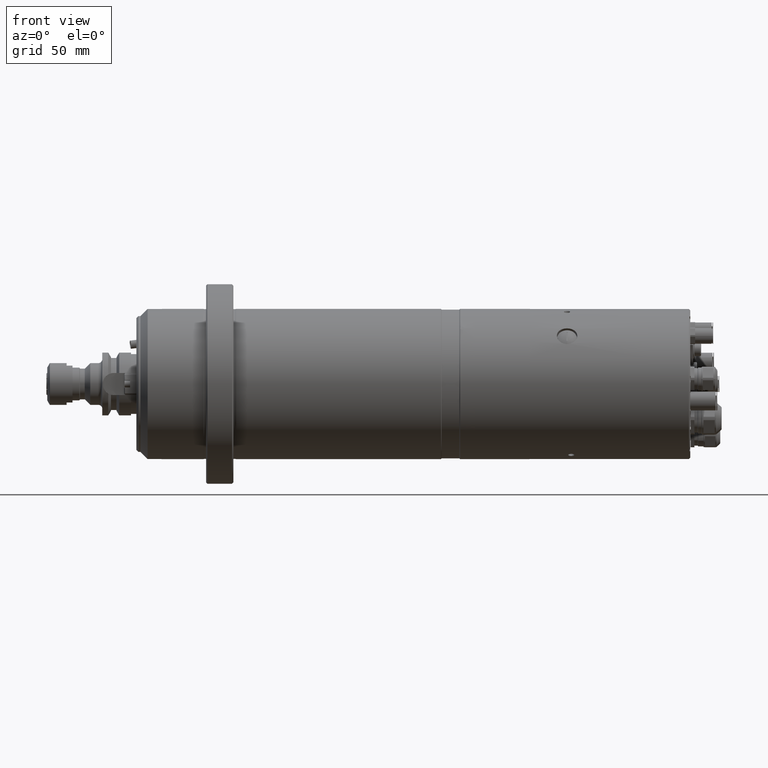
[diagram: clean part render]
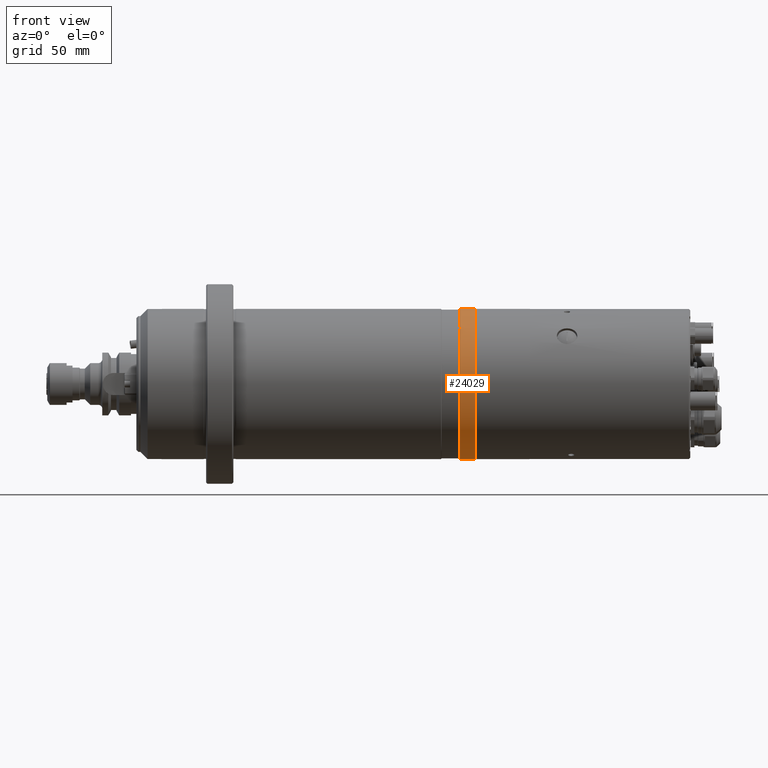
[diagram: same view with one face highlighted and labeled with its STEP entity id]
A machine part, front view. The second image highlights one B-rep face of the part: STEP entity #24029.
In plain terms, the highlighted cylindrical surface (partial cylindrical patch) has radius 55 mm, axis along (-1, -0, -0).
Its self-contained STEP definition (entity closure, byte-faithful):
#132 = CARTESIAN_POINT ( 'NONE',  ( 22.49999999999999300, 8.593990583918423500E-016, 55.00000000000000000 ) ) ;
#213 = CARTESIAN_POINT ( 'NONE',  ( 22.49999999999999300, 7.594956453702283300E-015, -55.00000000000000000 ) ) ;
#355 = DIRECTION ( 'NONE',  ( -1.000000000000000000, -0.0000000000000000000, -0.0000000000000000000 ) ) ;
#364 = DIRECTION ( 'NONE',  ( -1.000000000000000000, -0.0000000000000000000, -0.0000000000000000000 ) ) ;
#521 = DIRECTION ( 'NONE',  ( 0.0000000000000000000, 0.0000000000000000000, 1.000000000000000000 ) ) ;
#569 = DIRECTION ( 'NONE',  ( -1.000000000000000000, -0.0000000000000000000, -0.0000000000000000000 ) ) ;
#2672 = DIRECTION ( 'NONE',  ( -1.000000000000000000, -0.0000000000000000000, -0.0000000000000000000 ) ) ;
#2699 = DIRECTION ( 'NONE',  ( 0.0000000000000000000, 0.0000000000000000000, 1.000000000000000000 ) ) ;
#2743 = CARTESIAN_POINT ( 'NONE',  ( 241.0000000000000000, -36.80218334973697100, 40.87296540125688400 ) ) ;
#2755 = CARTESIAN_POINT ( 'NONE',  ( 241.3068846495247000, -36.11762339502041600, 41.47919874121109300 ) ) ;
#2787 = DIRECTION ( 'NONE',  ( -1.000000000000000000, -0.0000000000000000000, -0.0000000000000000000 ) ) ;
#2863 = CARTESIAN_POINT ( 'NONE',  ( 22.49999999999999300, 8.593990583918423500E-016, 3.988255730903800700E-016 ) ) ;
#2955 = DIRECTION ( 'NONE',  ( 0.0000000000000000000, 0.0000000000000000000, 1.000000000000000000 ) ) ;
#3237 = CARTESIAN_POINT ( 'NONE',  ( 243.8103234398321300, -36.23697448744256600, 41.37529120670519200 ) ) ;
#3250 = CARTESIAN_POINT ( 'NONE',  ( 243.9233418717061300, -36.44149743642565700, 41.19496965894972400 ) ) ;
#3265 = DIRECTION ( 'NONE',  ( 0.0000000000000000000, 0.0000000000000000000, 1.000000000000000000 ) ) ;
#3451 = CARTESIAN_POINT ( 'NONE',  ( 252.0000000000000000, 8.593990583918423500E-016, 3.988255730903800700E-016 ) ) ;
#3667 = CARTESIAN_POINT ( 'NONE',  ( 241.7451680100915000, -35.81759034506664800, 41.73854120569360800 ) ) ;
#3901 = DIRECTION ( 'NONE',  ( -1.000000000000000000, -0.0000000000000000000, -0.0000000000000000000 ) ) ;
#3929 = CARTESIAN_POINT ( 'NONE',  ( 243.9999652006347900, -36.72903975668447200, 40.93882291115144100 ) ) ;
#3999 = CARTESIAN_POINT ( 'NONE',  ( 241.0000000000000000, 8.593990583918423500E-016, 3.988255730903800700E-016 ) ) ;
#4011 = CARTESIAN_POINT ( 'NONE',  ( 243.7002019682240400, -36.11250964355898000, 41.48380692761353600 ) ) ;
#4034 = CARTESIAN_POINT ( 'NONE',  ( 243.4900816669437800, -35.95380771424704800, 41.62125188335719600 ) ) ;
#4041 = CARTESIAN_POINT ( 'NONE',  ( 243.9517220575198700, -36.51148393469670600, 41.13296455979796900 ) ) ;
#4044 = CARTESIAN_POINT ( 'NONE',  ( 243.9901215414020300, -36.65498125647969400, 41.00514091767439600 ) ) ;
#4077 = CARTESIAN_POINT ( 'NONE',  ( 241.1980328935024700, -36.24044607112529100, 41.37193150534880500 ) ) ;
#4271 = CARTESIAN_POINT ( 'NONE',  ( 243.4143123760399900, -35.90686376956257700, 41.66173402744545500 ) ) ;
#4281 = CARTESIAN_POINT ( 'NONE',  ( 243.9999999057338900, -36.80178815269334100, 40.87332123481380100 ) ) ;
#4294 = CARTESIAN_POINT ( 'NONE',  ( 243.2517459525182300, -35.82453855735023800, 41.73254587360394700 ) ) ;
#4366 = CARTESIAN_POINT ( 'NONE',  ( 242.6963956534157800, -35.68115038076595600, 41.85517738276167400 ) ) ;
#4429 = CARTESIAN_POINT ( 'NONE',  ( 242.9822850752912000, -35.73180894079455800, 41.81195092353687700 ) ) ;
#4445 = CARTESIAN_POINT ( 'NONE',  ( 241.0766676014284800, -36.44148610492999300, 41.19497955678095000 ) ) ;
#4607 = CARTESIAN_POINT ( 'NONE',  ( 243.1638949641973400, -35.78887219297983100, 41.76311814709551100 ) ) ;
#4629 = CARTESIAN_POINT ( 'NONE',  ( 242.3035448198819500, -35.67385623842518800, 41.86139009984045600 ) ) ;
#4630 = CARTESIAN_POINT ( 'NONE',  ( 242.1061506515361500, -35.70387771769094300, 41.83585443165425500 ) ) ;
#4633 = CARTESIAN_POINT ( 'NONE',  ( 241.3702396062740300, -36.05934912641313900, 41.52984624052145100 ) ) ;
#4634 = CARTESIAN_POINT ( 'NONE',  ( 242.8887792917493600, -35.71026887221955100, 41.83033663874898200 ) ) ;
#4636 = CARTESIAN_POINT ( 'NONE',  ( 241.1519593452385700, -36.30522335088858200, 41.31511839098974500 ) ) ;
#4637 = CARTESIAN_POINT ( 'NONE',  ( 241.0478272438360500, -36.51278901791442900, 41.13180553775040900 ) ) ;
#4638 = CARTESIAN_POINT ( 'NONE',  ( 241.0097247054591500, -36.65594103238754500, 41.00428240674592900 ) ) ;
#4641 = CARTESIAN_POINT ( 'NONE',  ( 241.5778286914652100, -35.90242934867522700, 41.66574995834121600 ) ) ;
#4642 = CARTESIAN_POINT ( 'NONE',  ( 242.5970302913321500, -35.67373732800795200, 41.86149143371513000 ) ) ;
#4645 = CARTESIAN_POINT ( 'NONE',  ( 241.0000000000000600, -36.72853605048951700, 40.93927772735092700 ) ) ;
#5022 = EDGE_LOOP ( 'NONE', ( #26135, #25786, #25230, #25286, #26339, #25485, #25776 ) ) ;
#7052 = CARTESIAN_POINT ( 'NONE',  ( 242.1089275271101500, -37.87529092881388200, 39.88067199324526500 ) ) ;
#7053 = CARTESIAN_POINT ( 'NONE',  ( 241.8359825786568300, -37.79334587202344400, 39.95828353660084500 ) ) ;
#7057 = CARTESIAN_POINT ( 'NONE',  ( 243.4926047788339400, -37.63335821586733200, 40.10904065547908500 ) ) ;
#7062 = CARTESIAN_POINT ( 'NONE',  ( 243.4155361994042200, -37.67955601226012200, 40.06562162461528900 ) ) ;
#7077 = CARTESIAN_POINT ( 'NONE',  ( 241.3015993754850400, -37.48314240161217700, 40.24963587465694600 ) ) ;
#7082 = CARTESIAN_POINT ( 'NONE',  ( 243.2524281515915200, -37.75898068823650500, 39.99077837243570600 ) ) ;
#7086 = CARTESIAN_POINT ( 'NONE',  ( 241.7497764609724400, -37.75989610022341500, 39.98991369319323000 ) ) ;
#7101 = CARTESIAN_POINT ( 'NONE',  ( 241.0000000000000000, -36.94947794823189500, 40.74034074906880700 ) ) ;
#7106 = CARTESIAN_POINT ( 'NONE',  ( 243.6998562068539800, -37.48171874602463300, 40.25096187012881200 ) ) ;
#7110 = CARTESIAN_POINT ( 'NONE',  ( 242.6978136931686300, -37.89604379226381800, 39.86088598569189400 ) ) ;
#7111 = CARTESIAN_POINT ( 'NONE',  ( 241.5867666554644000, -37.68083117471102400, 40.06442203091961600 ) ) ;
#7133 = CARTESIAN_POINT ( 'NONE',  ( 243.8115285434813000, -37.35903735665366600, 40.36502117902511300 ) ) ;
#7136 = CARTESIAN_POINT ( 'NONE',  ( 242.9849518637995800, -37.84724905589217800, 39.90723192578345600 ) ) ;
#7143 = CARTESIAN_POINT ( 'NONE',  ( 243.9608427373040300, -37.09318476386854300, 40.60946011796389100 ) ) ;
#7152 = CARTESIAN_POINT ( 'NONE',  ( 241.5094802138171400, -37.63470074744058300, 40.10778088770428000 ) ) ;
#7157 = CARTESIAN_POINT ( 'NONE',  ( 241.0000000000000000, -36.80218334973697100, 40.87296540125688400 ) ) ;
#7164 = CARTESIAN_POINT ( 'NONE',  ( 244.0000693159323400, -36.94728494471108600, 40.74231788213855100 ) ) ;
#7166 = CARTESIAN_POINT ( 'NONE',  ( 241.1897832440330100, -37.36071077446327800, 40.36347177302107500 ) ) ;
#7182 = CARTESIAN_POINT ( 'NONE',  ( 243.9999999057338900, -36.80178815269334100, 40.87332123481380100 ) ) ;
#7188 = CARTESIAN_POINT ( 'NONE',  ( 243.1663162147888200, -37.79250843456274100, 39.95907565623242900 ) ) ;
#7189 = CARTESIAN_POINT ( 'NONE',  ( 242.6004438922048500, -37.90313784457085000, 39.85413581481317600 ) ) ;
#7192 = CARTESIAN_POINT ( 'NONE',  ( 242.3036855016378300, -37.90335646493329600, 39.85392789591329400 ) ) ;
#7193 = CARTESIAN_POINT ( 'NONE',  ( 241.0398365524659100, -37.09504768808722700, 40.60775788150707700 ) ) ;
#7195 = CARTESIAN_POINT ( 'NONE',  ( 242.8895612699991800, -37.86827894280826000, 39.88726383921526500 ) ) ;
#8546 = VERTEX_POINT ( 'NONE', #28138 ) ;
#8607 = VERTEX_POINT ( 'NONE', #27485 ) ;
#8672 = VERTEX_POINT ( 'NONE', #27580 ) ;
#8675 = VERTEX_POINT ( 'NONE', #27648 ) ;
#8817 = VERTEX_POINT ( 'NONE', #12367 ) ;
#8934 = VERTEX_POINT ( 'NONE', #13090 ) ;
#11853 = CIRCLE ( 'NONE', #18943, 55.00000000000000000 ) ;
#11857 = CIRCLE ( 'NONE', #18883, 55.00000000000000000 ) ;
#12367 = CARTESIAN_POINT ( 'NONE',  ( 241.0000000000000000, -36.80218334973697100, 40.87296540125688400 ) ) ;
#13090 = CARTESIAN_POINT ( 'NONE',  ( 243.9999999057338900, -36.80178815269334100, 40.87332123481380100 ) ) ;
#13238 = AXIS2_PLACEMENT_3D ( 'NONE', #2863, #2672, #2699 ) ;
#14763 = VECTOR ( 'NONE', #364, 1000.000000000000000 ) ;
#14765 = VECTOR ( 'NONE', #355, 1000.000000000000000 ) ;
#14767 = LINE ( 'NONE', #213, #14763 ) ;
#14768 = LINE ( 'NONE', #132, #14765 ) ;
#14880 = CIRCLE ( 'NONE', #18750, 55.00000000000000000 ) ;
#18750 = AXIS2_PLACEMENT_3D ( 'NONE', #30554, #569, #521 ) ;
#18883 = AXIS2_PLACEMENT_3D ( 'NONE', #3999, #3901, #2955 ) ;
#18943 = AXIS2_PLACEMENT_3D ( 'NONE', #3451, #2787, #3265 ) ;
#22228 = B_SPLINE_CURVE_WITH_KNOTS ( 'NONE', 3,
 ( #7182, #7164, #7143, #7133, #7106, #7057, #7062, #7082, #7188, #7136, #7195, #7110, #7189, #7192, #7052, #7053, #7086, #7111, #7152, #7077, #7166, #7193, #7101, #7157 ),
 .UNSPECIFIED., .F., .F.,
 ( 4, 2, 2, 2, 2, 2, 2, 2, 2, 2, 2, 4 ),
 ( 0.004689372176197917200, 0.005275543698222673800, 0.005861715220247430500, 0.006154800981259789800, 0.006447886742272149900, 0.006740972503284509100, 0.007034058264296868400, 0.007620229786321669300, 0.007913315547334031200, 0.008206401308346393900, 0.008792572830371117600, 0.009378744352395841300 ),
 .UNSPECIFIED. ) ;
#22272 = B_SPLINE_CURVE_WITH_KNOTS ( 'NONE', 3,
 ( #2743, #4645, #4638, #4637, #4445, #4636, #4077, #2755, #4633, #4641, #3667, #4630, #4629, #4642, #4366, #4634, #4429, #4607, #4294, #4271, #4034, #4011, #3237, #3250, #4041, #4044, #3929, #4281 ),
 .UNSPECIFIED., .F., .F.,
 ( 4, 2, 2, 2, 2, 2, 2, 2, 2, 2, 2, 2, 2, 4 ),
 ( 0.0000000000000000000, 0.0002930857610123732900, 0.0005861715220247465900, 0.0008792572830371199300, 0.001172343044049493200, 0.001758514566074239900, 0.002344686088098986300, 0.002637771849111359500, 0.002930857610123732600, 0.003223943371136106200, 0.003517029132148479700, 0.004103200654173205600, 0.004396286415185561400, 0.004689372176197917200 ),
 .UNSPECIFIED. ) ;
#23324 = FACE_OUTER_BOUND ( 'NONE', #5022, .T. ) ;
#23431 = CYLINDRICAL_SURFACE ( 'NONE', #13238, 55.00000000000000000 ) ;
#24029 = ADVANCED_FACE ( 'NONE', ( #23324 ), #23431, .T. ) ;
#25230 = ORIENTED_EDGE ( 'NONE', *, *, #28492, .T. ) ;
#25286 = ORIENTED_EDGE ( 'NONE', *, *, #28512, .F. ) ;
#25485 = ORIENTED_EDGE ( 'NONE', *, *, #29404, .T. ) ;
#25776 = ORIENTED_EDGE ( 'NONE', *, *, #29178, .F. ) ;
#25786 = ORIENTED_EDGE ( 'NONE', *, *, #29168, .T. ) ;
#26135 = ORIENTED_EDGE ( 'NONE', *, *, #28493, .F. ) ;
#26339 = ORIENTED_EDGE ( 'NONE', *, *, #29176, .T. ) ;
#27485 = CARTESIAN_POINT ( 'NONE',  ( 241.0000000000000000, 8.593990583918423500E-016, 55.00000000000000000 ) ) ;
#27580 = CARTESIAN_POINT ( 'NONE',  ( 252.0000000000000000, 7.594956453702283300E-015, -55.00000000000000000 ) ) ;
#27648 = CARTESIAN_POINT ( 'NONE',  ( 241.0000000000000000, 7.594956453702283300E-015, -55.00000000000000000 ) ) ;
#28138 = CARTESIAN_POINT ( 'NONE',  ( 252.0000000000000000, 8.593990583918423500E-016, 55.00000000000000000 ) ) ;
#28492 = EDGE_CURVE ( 'NONE', #8546, #8607, #14768, .T. ) ;
#28493 = EDGE_CURVE ( 'NONE', #8672, #8675, #14767, .T. ) ;
#28512 = EDGE_CURVE ( 'NONE', #8817, #8607, #14880, .T. ) ;
#29168 = EDGE_CURVE ( 'NONE', #8672, #8546, #11853, .T. ) ;
#29176 = EDGE_CURVE ( 'NONE', #8817, #8934, #22272, .T. ) ;
#29178 = EDGE_CURVE ( 'NONE', #8675, #8817, #11857, .T. ) ;
#29404 = EDGE_CURVE ( 'NONE', #8934, #8817, #22228, .T. ) ;
#30554 = CARTESIAN_POINT ( 'NONE',  ( 241.0000000000000000, 8.593990583918423500E-016, 3.988255730903800700E-016 ) ) ;